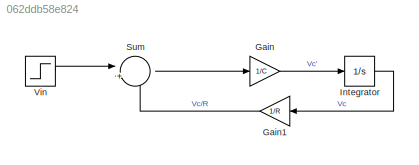
MODEL slx_062ddb58e824
KIND model
CONFIG AbsTol = auto
CONFIG EnableMultiTasking = off
CONFIG FixedStep = auto
CONFIG MaxStep = auto
CONFIG MinStep = auto
CONFIG RelTol = 1e-3
CONFIG SampleTimeConstraint = Unconstrained
CONFIG SolverName = VariableStepAuto
CONFIG StartTime = 0.0
CONFIG StopTime = 10.0
BLOCK [Gain] Gain
  Gain = 1/C
  NameLocation = top
BLOCK [Gain] Gain1
  Gain = 1/R
BLOCK [Integrator] Integrator
BLOCK [Sum] Sum
  Inputs = |+-
BLOCK [Step] Vin
  SampleTime = 0
LINE Gain1:1 -> Sum:2
LINE Gain:1 -> Integrator:1
LINE Integrator:1 -> Gain1:1
LINE Sum:1 -> Gain:1
LINE Vin:1 -> Sum:1
